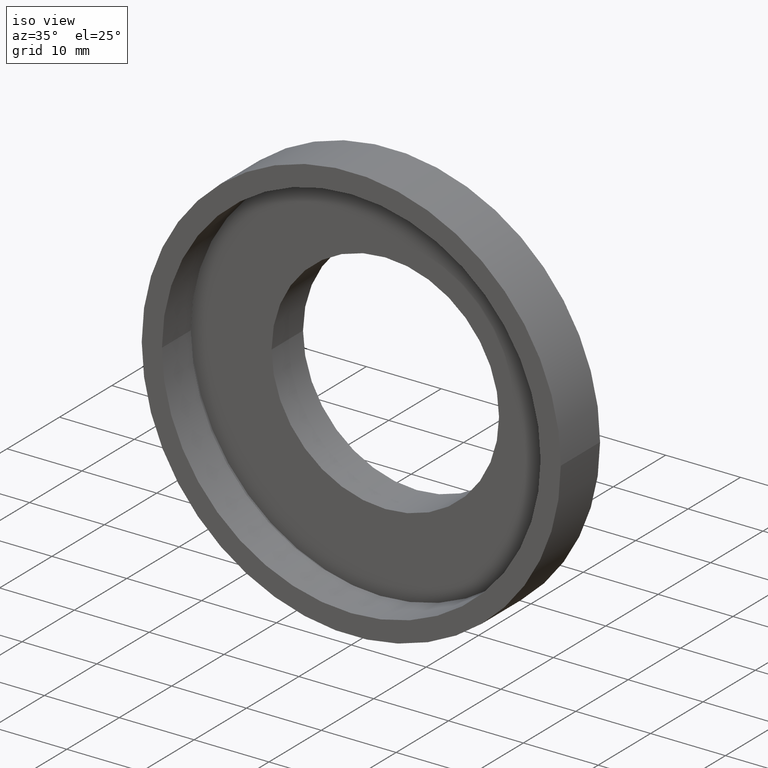
[diagram: clean part render]
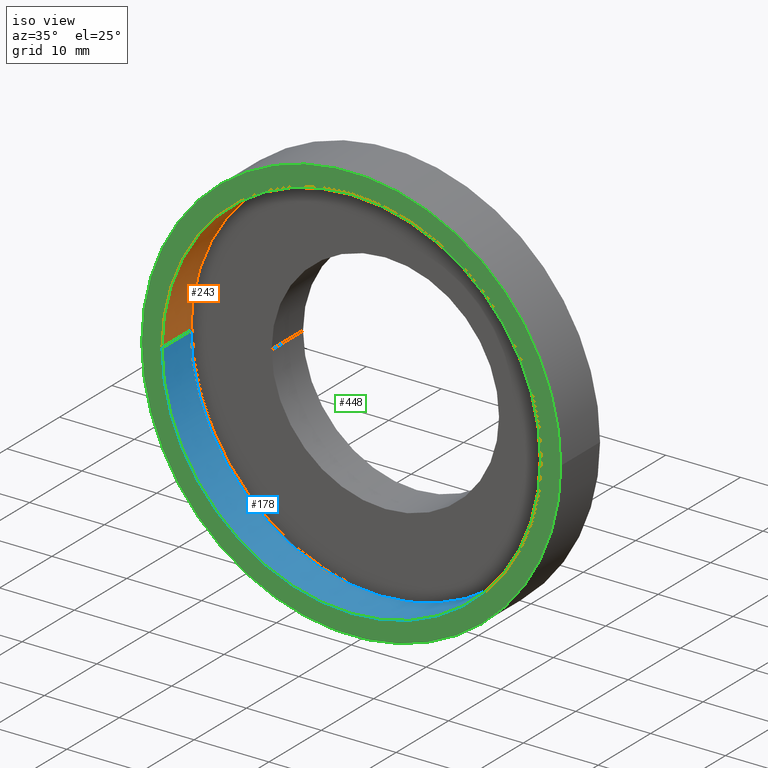
[diagram: same view with three faces highlighted in distinct colors, each labeled with its STEP entity id]
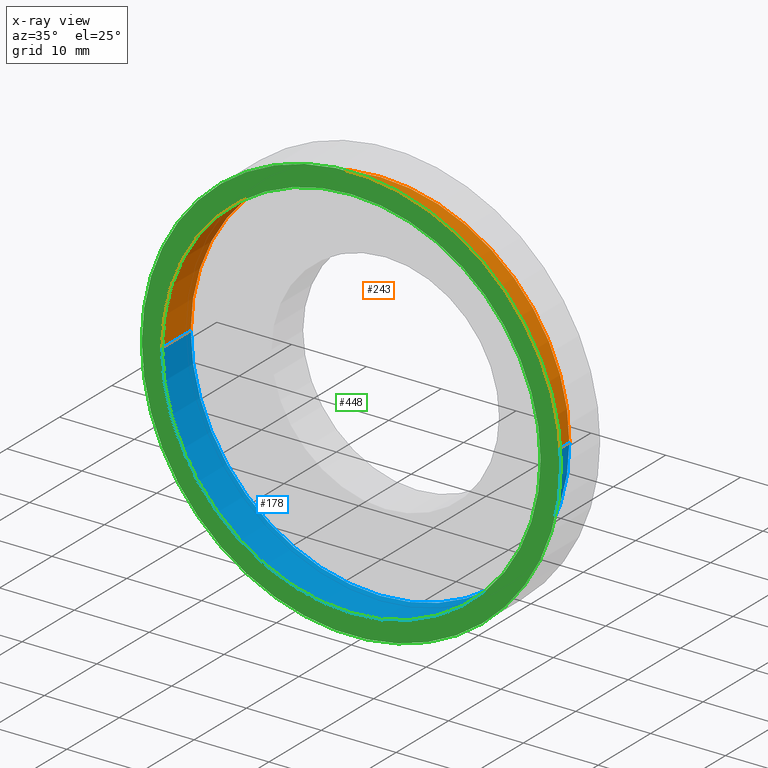
[diagram: x-ray of the same camera — body ghosted, the three highlighted faces saturated]
A machine part, iso view with three faces highlighted in distinct colors.
The next image is the same camera in x-ray (body ghosted, the three faces saturated) — at least one of them is partly hidden behind the body in this view.
Their STEP definitions:

[orange] entity #243 — the highlighted cylindrical surface (partial cylindrical patch) has radius 25.3 mm, axis along (-0, 1, -0).
#1 = CARTESIAN_POINT ( 'NONE',  ( 2.067940818438636500E-015, -3.469446951953614200E-015, 0.0000000000000000000 ) ) ;
#8 = ORIENTED_EDGE ( 'NONE', *, *, #285, .F. ) ;
#9 = ORIENTED_EDGE ( 'NONE', *, *, #412, .T. ) ;
#23 = DIRECTION ( 'NONE',  ( -1.224646799147351000E-016, 1.000000000000000000, -0.0000000000000000000 ) ) ;
#32 = CARTESIAN_POINT ( 'NONE',  ( 25.30000000000000400, 16.88601823708208000, 3.098356401842804300E-015 ) ) ;
#40 = AXIS2_PLACEMENT_3D ( 'NONE', #517, #621, #126 ) ;
#52 = LINE ( 'NONE', #32, #268 ) ;
#59 = EDGE_CURVE ( 'NONE', #307, #499, #445, .T. ) ;
#60 = LINE ( 'NONE', #395, #365 ) ;
#66 = CYLINDRICAL_SURFACE ( 'NONE', #443, 25.30000000000000400 ) ;
#126 = DIRECTION ( 'NONE',  ( -1.000000000000000000, -1.371322905910519200E-016, 0.0000000000000000000 ) ) ;
#160 = ORIENTED_EDGE ( 'NONE', *, *, #59, .T. ) ;
#212 = VERTEX_POINT ( 'NONE', #576 ) ;
#238 = DIRECTION ( 'NONE',  ( -1.224646799147351000E-016, 1.000000000000000000, -0.0000000000000000000 ) ) ;
#243 = ADVANCED_FACE ( 'NONE', ( #587 ), #66, .F. ) ;
#258 = VERTEX_POINT ( 'NONE', #623 ) ;
#268 = VECTOR ( 'NONE', #552, 1000.000000000000000 ) ;
#269 = CARTESIAN_POINT ( 'NONE',  ( 25.30000000000000400, 5.499999999999998200, 3.098356401842804300E-015 ) ) ;
#285 = EDGE_CURVE ( 'NONE', #212, #258, #509, .T. ) ;
#307 = VERTEX_POINT ( 'NONE', #537 ) ;
#309 = ORIENTED_EDGE ( 'NONE', *, *, #561, .F. ) ;
#365 = VECTOR ( 'NONE', #23, 1000.000000000000000 ) ;
#386 = DIRECTION ( 'NONE',  ( -1.224646799147351000E-016, 1.000000000000000000, -0.0000000000000000000 ) ) ;
#393 = DIRECTION ( 'NONE',  ( -1.000000000000000000, -1.371322905910519200E-016, 0.0000000000000000000 ) ) ;
#395 = CARTESIAN_POINT ( 'NONE',  ( -25.30000000000000400, 16.88601823708207300, 0.0000000000000000000 ) ) ;
#412 = EDGE_CURVE ( 'NONE', #212, #307, #60, .T. ) ;
#435 = CARTESIAN_POINT ( 'NONE',  ( 0.0000000000000000000, 16.88601823708207700, 0.0000000000000000000 ) ) ;
#439 = DIRECTION ( 'NONE',  ( -1.000000000000000000, -1.224646799147351000E-016, 0.0000000000000000000 ) ) ;
#443 = AXIS2_PLACEMENT_3D ( 'NONE', #435, #238, #393 ) ;
#445 = CIRCLE ( 'NONE', #40, 25.30000000000000400 ) ;
#499 = VERTEX_POINT ( 'NONE', #269 ) ;
#509 = CIRCLE ( 'NONE', #534, 25.30000000000000100 ) ;
#517 = CARTESIAN_POINT ( 'NONE',  ( 1.394385078907593400E-015, 5.499999999999994700, 0.0000000000000000000 ) ) ;
#528 = EDGE_LOOP ( 'NONE', ( #309, #8, #9, #160 ) ) ;
#534 = AXIS2_PLACEMENT_3D ( 'NONE', #1, #386, #439 ) ;
#537 = CARTESIAN_POINT ( 'NONE',  ( -25.30000000000000400, 5.499999999999991100, 0.0000000000000000000 ) ) ;
#552 = DIRECTION ( 'NONE',  ( -1.224646799147351000E-016, 1.000000000000000000, -0.0000000000000000000 ) ) ;
#561 = EDGE_CURVE ( 'NONE', #258, #499, #52, .T. ) ;
#576 = CARTESIAN_POINT ( 'NONE',  ( -25.29999999999999700, -6.567803353796412200E-015, 0.0000000000000000000 ) ) ;
#587 = FACE_OUTER_BOUND ( 'NONE', #528, .T. ) ;
#621 = DIRECTION ( 'NONE',  ( -1.224646799147351000E-016, 1.000000000000000000, -0.0000000000000000000 ) ) ;
#623 = CARTESIAN_POINT ( 'NONE',  ( 25.30000000000000400, -3.710905501108162000E-016, 3.098356401842804300E-015 ) ) ;

[blue] entity #178 — the highlighted cylindrical surface (partial cylindrical patch) has radius 25.3 mm, axis along (-0, 1, -0).
#23 = DIRECTION ( 'NONE',  ( -1.224646799147351000E-016, 1.000000000000000000, -0.0000000000000000000 ) ) ;
#32 = CARTESIAN_POINT ( 'NONE',  ( 25.30000000000000400, 16.88601823708208000, 3.098356401842804300E-015 ) ) ;
#48 = DIRECTION ( 'NONE',  ( -1.000000000000000000, -1.224646799147351000E-016, 0.0000000000000000000 ) ) ;
#52 = LINE ( 'NONE', #32, #268 ) ;
#54 = DIRECTION ( 'NONE',  ( -1.000000000000000000, -1.371322905910519200E-016, 0.0000000000000000000 ) ) ;
#60 = LINE ( 'NONE', #395, #365 ) ;
#81 = DIRECTION ( 'NONE',  ( -1.224646799147351000E-016, 1.000000000000000000, -0.0000000000000000000 ) ) ;
#85 = EDGE_CURVE ( 'NONE', #258, #212, #292, .T. ) ;
#87 = CARTESIAN_POINT ( 'NONE',  ( 0.0000000000000000000, 16.88601823708207700, 0.0000000000000000000 ) ) ;
#136 = ORIENTED_EDGE ( 'NONE', *, *, #85, .F. ) ;
#144 = EDGE_CURVE ( 'NONE', #499, #307, #190, .T. ) ;
#178 = ADVANCED_FACE ( 'NONE', ( #530 ), #602, .F. ) ;
#186 = DIRECTION ( 'NONE',  ( -1.000000000000000000, -1.371322905910519200E-016, 0.0000000000000000000 ) ) ;
#190 = CIRCLE ( 'NONE', #352, 25.30000000000000400 ) ;
#200 = ORIENTED_EDGE ( 'NONE', *, *, #561, .T. ) ;
#212 = VERTEX_POINT ( 'NONE', #576 ) ;
#216 = AXIS2_PLACEMENT_3D ( 'NONE', #236, #379, #48 ) ;
#219 = ORIENTED_EDGE ( 'NONE', *, *, #144, .T. ) ;
#236 = CARTESIAN_POINT ( 'NONE',  ( 2.067940818438636500E-015, -3.469446951953614200E-015, 0.0000000000000000000 ) ) ;
#244 = EDGE_LOOP ( 'NONE', ( #136, #200, #219, #321 ) ) ;
#258 = VERTEX_POINT ( 'NONE', #623 ) ;
#268 = VECTOR ( 'NONE', #552, 1000.000000000000000 ) ;
#269 = CARTESIAN_POINT ( 'NONE',  ( 25.30000000000000400, 5.499999999999998200, 3.098356401842804300E-015 ) ) ;
#287 = DIRECTION ( 'NONE',  ( -1.224646799147351000E-016, 1.000000000000000000, -0.0000000000000000000 ) ) ;
#292 = CIRCLE ( 'NONE', #216, 25.30000000000000100 ) ;
#307 = VERTEX_POINT ( 'NONE', #537 ) ;
#321 = ORIENTED_EDGE ( 'NONE', *, *, #412, .F. ) ;
#352 = AXIS2_PLACEMENT_3D ( 'NONE', #470, #287, #186 ) ;
#365 = VECTOR ( 'NONE', #23, 1000.000000000000000 ) ;
#379 = DIRECTION ( 'NONE',  ( -1.224646799147351000E-016, 1.000000000000000000, -0.0000000000000000000 ) ) ;
#395 = CARTESIAN_POINT ( 'NONE',  ( -25.30000000000000400, 16.88601823708207300, 0.0000000000000000000 ) ) ;
#412 = EDGE_CURVE ( 'NONE', #212, #307, #60, .T. ) ;
#470 = CARTESIAN_POINT ( 'NONE',  ( 1.394385078907593400E-015, 5.499999999999994700, 0.0000000000000000000 ) ) ;
#472 = AXIS2_PLACEMENT_3D ( 'NONE', #87, #81, #54 ) ;
#499 = VERTEX_POINT ( 'NONE', #269 ) ;
#530 = FACE_OUTER_BOUND ( 'NONE', #244, .T. ) ;
#537 = CARTESIAN_POINT ( 'NONE',  ( -25.30000000000000400, 5.499999999999991100, 0.0000000000000000000 ) ) ;
#552 = DIRECTION ( 'NONE',  ( -1.224646799147351000E-016, 1.000000000000000000, -0.0000000000000000000 ) ) ;
#561 = EDGE_CURVE ( 'NONE', #258, #499, #52, .T. ) ;
#576 = CARTESIAN_POINT ( 'NONE',  ( -25.29999999999999700, -6.567803353796412200E-015, 0.0000000000000000000 ) ) ;
#602 = CYLINDRICAL_SURFACE ( 'NONE', #472, 25.30000000000000400 ) ;
#623 = CARTESIAN_POINT ( 'NONE',  ( 25.30000000000000400, -3.710905501108162000E-016, 3.098356401842804300E-015 ) ) ;

[green] entity #448 — the highlighted planar face has unit normal (-0, 1, 0).
#1 = CARTESIAN_POINT ( 'NONE',  ( 2.067940818438636500E-015, -3.469446951953614200E-015, 0.0000000000000000000 ) ) ;
#20 = ORIENTED_EDGE ( 'NONE', *, *, #285, .T. ) ;
#22 = ORIENTED_EDGE ( 'NONE', *, *, #381, .F. ) ;
#41 = DIRECTION ( 'NONE',  ( -1.000000000000000000, -1.224646799147351200E-016, 0.0000000000000000000 ) ) ;
#48 = DIRECTION ( 'NONE',  ( -1.000000000000000000, -1.224646799147351000E-016, 0.0000000000000000000 ) ) ;
#65 = FACE_BOUND ( 'NONE', #129, .T. ) ;
#67 = CARTESIAN_POINT ( 'NONE',  ( 2.067940818438636500E-015, -3.469446951953614200E-015, 0.0000000000000000000 ) ) ;
#85 = EDGE_CURVE ( 'NONE', #258, #212, #292, .T. ) ;
#102 = AXIS2_PLACEMENT_3D ( 'NONE', #67, #399, #447 ) ;
#106 = CARTESIAN_POINT ( 'NONE',  ( 28.00000000000000400, -4.043591434103126100E-017, 3.429011037612589700E-015 ) ) ;
#108 = CARTESIAN_POINT ( 'NONE',  ( 2.067940818438636500E-015, -3.469446951953614200E-015, 0.0000000000000000000 ) ) ;
#129 = EDGE_LOOP ( 'NONE', ( #20, #607 ) ) ;
#130 = AXIS2_PLACEMENT_3D ( 'NONE', #542, #151, #545 ) ;
#151 = DIRECTION ( 'NONE',  ( -1.224646799147351000E-016, 1.000000000000000000, 0.0000000000000000000 ) ) ;
#159 = PLANE ( 'NONE',  #130 ) ;
#180 = CIRCLE ( 'NONE', #102, 27.99999999999999600 ) ;
#212 = VERTEX_POINT ( 'NONE', #576 ) ;
#216 = AXIS2_PLACEMENT_3D ( 'NONE', #236, #379, #48 ) ;
#236 = CARTESIAN_POINT ( 'NONE',  ( 2.067940818438636500E-015, -3.469446951953614200E-015, 0.0000000000000000000 ) ) ;
#237 = EDGE_LOOP ( 'NONE', ( #297, #22 ) ) ;
#253 = FACE_OUTER_BOUND ( 'NONE', #237, .T. ) ;
#256 = CARTESIAN_POINT ( 'NONE',  ( -27.99999999999999300, -6.898457989566196800E-015, 0.0000000000000000000 ) ) ;
#258 = VERTEX_POINT ( 'NONE', #623 ) ;
#285 = EDGE_CURVE ( 'NONE', #212, #258, #509, .T. ) ;
#292 = CIRCLE ( 'NONE', #216, 25.30000000000000100 ) ;
#297 = ORIENTED_EDGE ( 'NONE', *, *, #501, .F. ) ;
#370 = VERTEX_POINT ( 'NONE', #256 ) ;
#377 = AXIS2_PLACEMENT_3D ( 'NONE', #108, #560, #41 ) ;
#379 = DIRECTION ( 'NONE',  ( -1.224646799147351000E-016, 1.000000000000000000, -0.0000000000000000000 ) ) ;
#381 = EDGE_CURVE ( 'NONE', #415, #370, #180, .T. ) ;
#386 = DIRECTION ( 'NONE',  ( -1.224646799147351000E-016, 1.000000000000000000, -0.0000000000000000000 ) ) ;
#399 = DIRECTION ( 'NONE',  ( -1.224646799147351000E-016, 1.000000000000000000, -0.0000000000000000000 ) ) ;
#415 = VERTEX_POINT ( 'NONE', #106 ) ;
#439 = DIRECTION ( 'NONE',  ( -1.000000000000000000, -1.224646799147351000E-016, 0.0000000000000000000 ) ) ;
#447 = DIRECTION ( 'NONE',  ( -1.000000000000000000, -1.224646799147351200E-016, 0.0000000000000000000 ) ) ;
#448 = ADVANCED_FACE ( 'NONE', ( #253, #65 ), #159, .F. ) ;
#501 = EDGE_CURVE ( 'NONE', #370, #415, #598, .T. ) ;
#509 = CIRCLE ( 'NONE', #534, 25.30000000000000100 ) ;
#534 = AXIS2_PLACEMENT_3D ( 'NONE', #1, #386, #439 ) ;
#542 = CARTESIAN_POINT ( 'NONE',  ( 28.00000000000000000, -9.629649721936179300E-032, 0.0000000000000000000 ) ) ;
#545 = DIRECTION ( 'NONE',  ( -1.000000000000000000, -1.224646799147351000E-016, 0.0000000000000000000 ) ) ;
#560 = DIRECTION ( 'NONE',  ( -1.224646799147351000E-016, 1.000000000000000000, -0.0000000000000000000 ) ) ;
#576 = CARTESIAN_POINT ( 'NONE',  ( -25.29999999999999700, -6.567803353796412200E-015, 0.0000000000000000000 ) ) ;
#598 = CIRCLE ( 'NONE', #377, 27.99999999999999600 ) ;
#607 = ORIENTED_EDGE ( 'NONE', *, *, #85, .T. ) ;
#623 = CARTESIAN_POINT ( 'NONE',  ( 25.30000000000000400, -3.710905501108162000E-016, 3.098356401842804300E-015 ) ) ;